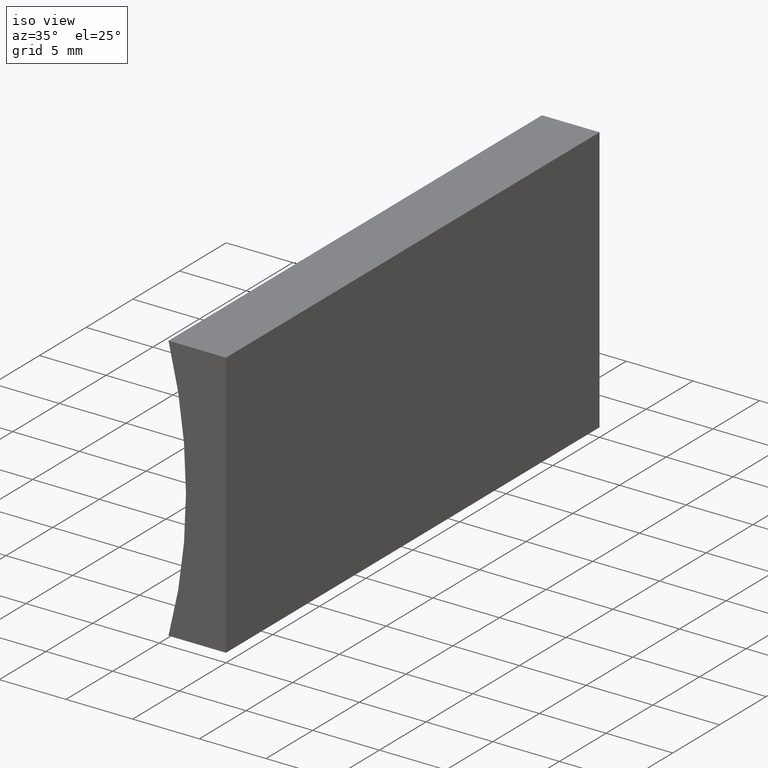
[diagram: clean part render]
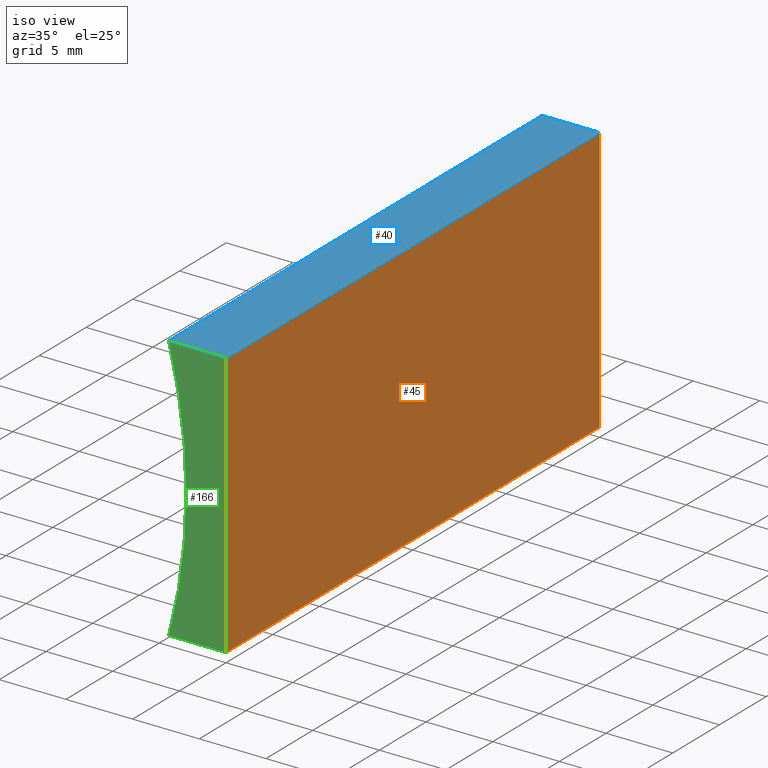
[diagram: same view with three faces highlighted in distinct colors, each labeled with its STEP entity id]
A machine part, iso view with three faces highlighted in distinct colors.
Their STEP definitions:

[orange] entity #45 — the highlighted planar face has unit normal (-1, 0, 0).
#4 = DIRECTION ( 'NONE',  ( -6.123233995736766000E-017, -0.0000000000000000000, -1.000000000000000000 ) ) ;
#18 = AXIS2_PLACEMENT_3D ( 'NONE', #21, #108, #192 ) ;
#21 = CARTESIAN_POINT ( 'NONE',  ( 0.0000000000000000000, 40.00000000000000000, 0.0000000000000000000 ) ) ;
#26 = CARTESIAN_POINT ( 'NONE',  ( 0.0000000000000000000, 40.00000000000000000, 0.0000000000000000000 ) ) ;
#27 = EDGE_CURVE ( 'NONE', #79, #50, #181, .T. ) ;
#31 = VERTEX_POINT ( 'NONE', #26 ) ;
#35 = PLANE ( 'NONE',  #18 ) ;
#41 = ORIENTED_EDGE ( 'NONE', *, *, #78, .T. ) ;
#45 = ADVANCED_FACE ( 'NONE', ( #146 ), #35, .F. ) ;
#50 = VERTEX_POINT ( 'NONE', #176 ) ;
#55 = EDGE_CURVE ( 'NONE', #31, #50, #116, .T. ) ;
#67 = VECTOR ( 'NONE', #193, 1000.000000000000000 ) ;
#71 = VECTOR ( 'NONE', #4, 1000.000000000000000 ) ;
#75 = CARTESIAN_POINT ( 'NONE',  ( 0.0000000000000000000, 40.00000000000000000, 0.0000000000000000000 ) ) ;
#78 = EDGE_CURVE ( 'NONE', #101, #79, #179, .T. ) ;
#79 = VERTEX_POINT ( 'NONE', #136 ) ;
#82 = CARTESIAN_POINT ( 'NONE',  ( 1.224646799147353300E-015, 40.00000000000000000, 20.00000000000000000 ) ) ;
#91 = CARTESIAN_POINT ( 'NONE',  ( 0.0000000000000000000, 0.0000000000000000000, 0.0000000000000000000 ) ) ;
#98 = CARTESIAN_POINT ( 'NONE',  ( 1.224646799147353300E-015, 40.00000000000000000, 20.00000000000000000 ) ) ;
#101 = VERTEX_POINT ( 'NONE', #98 ) ;
#106 = EDGE_LOOP ( 'NONE', ( #133, #187, #113, #41 ) ) ;
#108 = DIRECTION ( 'NONE',  ( -1.000000000000000000, 0.0000000000000000000, 6.123233995736766000E-017 ) ) ;
#113 = ORIENTED_EDGE ( 'NONE', *, *, #194, .F. ) ;
#116 = LINE ( 'NONE', #125, #67 ) ;
#125 = CARTESIAN_POINT ( 'NONE',  ( 0.0000000000000000000, 40.00000000000000000, 0.0000000000000000000 ) ) ;
#126 = LINE ( 'NONE', #75, #134 ) ;
#133 = ORIENTED_EDGE ( 'NONE', *, *, #27, .T. ) ;
#134 = VECTOR ( 'NONE', #174, 1000.000000000000000 ) ;
#136 = CARTESIAN_POINT ( 'NONE',  ( 1.224646799147353300E-015, 0.0000000000000000000, 20.00000000000000000 ) ) ;
#146 = FACE_OUTER_BOUND ( 'NONE', #106, .T. ) ;
#174 = DIRECTION ( 'NONE',  ( -6.123233995736766000E-017, -0.0000000000000000000, -1.000000000000000000 ) ) ;
#176 = CARTESIAN_POINT ( 'NONE',  ( 0.0000000000000000000, 0.0000000000000000000, 0.0000000000000000000 ) ) ;
#179 = LINE ( 'NONE', #82, #204 ) ;
#181 = LINE ( 'NONE', #91, #71 ) ;
#183 = DIRECTION ( 'NONE',  ( -0.0000000000000000000, -1.000000000000000000, -0.0000000000000000000 ) ) ;
#187 = ORIENTED_EDGE ( 'NONE', *, *, #55, .F. ) ;
#192 = DIRECTION ( 'NONE',  ( 6.123233995736766000E-017, 0.0000000000000000000, 1.000000000000000000 ) ) ;
#193 = DIRECTION ( 'NONE',  ( -0.0000000000000000000, -1.000000000000000000, -0.0000000000000000000 ) ) ;
#194 = EDGE_CURVE ( 'NONE', #101, #31, #126, .T. ) ;
#204 = VECTOR ( 'NONE', #183, 1000.000000000000000 ) ;

[blue] entity #40 — the highlighted planar face has unit normal (0, 0, -1).
#17 = EDGE_CURVE ( 'NONE', #115, #79, #168, .T. ) ;
#25 = ORIENTED_EDGE ( 'NONE', *, *, #148, .F. ) ;
#29 = ORIENTED_EDGE ( 'NONE', *, *, #52, .T. ) ;
#32 = VECTOR ( 'NONE', #46, 1000.000000000000000 ) ;
#40 = ADVANCED_FACE ( 'NONE', ( #165 ), #117, .F. ) ;
#46 = DIRECTION ( 'NONE',  ( -0.0000000000000000000, -1.000000000000000000, -0.0000000000000000000 ) ) ;
#52 = EDGE_CURVE ( 'NONE', #137, #115, #198, .T. ) ;
#68 = CARTESIAN_POINT ( 'NONE',  ( -4.311501231034082300, 0.0000000000000000000, 20.00000000000000000 ) ) ;
#69 = VECTOR ( 'NONE', #84, 1000.000000000000000 ) ;
#78 = EDGE_CURVE ( 'NONE', #101, #79, #179, .T. ) ;
#79 = VERTEX_POINT ( 'NONE', #136 ) ;
#80 = CARTESIAN_POINT ( 'NONE',  ( 1.224646799147353300E-015, 40.00000000000000000, 20.00000000000000000 ) ) ;
#82 = CARTESIAN_POINT ( 'NONE',  ( 1.224646799147353300E-015, 40.00000000000000000, 20.00000000000000000 ) ) ;
#84 = DIRECTION ( 'NONE',  ( 1.000000000000000000, -0.0000000000000000000, -0.0000000000000000000 ) ) ;
#95 = DIRECTION ( 'NONE',  ( 0.0000000000000000000, 0.0000000000000000000, -1.000000000000000000 ) ) ;
#98 = CARTESIAN_POINT ( 'NONE',  ( 1.224646799147353300E-015, 40.00000000000000000, 20.00000000000000000 ) ) ;
#99 = DIRECTION ( 'NONE',  ( 1.000000000000000000, -0.0000000000000000000, -0.0000000000000000000 ) ) ;
#100 = CARTESIAN_POINT ( 'NONE',  ( -4.311501231034082300, 40.00000000000000000, 20.00000000000000000 ) ) ;
#101 = VERTEX_POINT ( 'NONE', #98 ) ;
#102 = DIRECTION ( 'NONE',  ( -1.000000000000000000, 0.0000000000000000000, -0.0000000000000000000 ) ) ;
#111 = AXIS2_PLACEMENT_3D ( 'NONE', #161, #95, #102 ) ;
#115 = VERTEX_POINT ( 'NONE', #68 ) ;
#117 = PLANE ( 'NONE',  #111 ) ;
#122 = LINE ( 'NONE', #80, #69 ) ;
#130 = CARTESIAN_POINT ( 'NONE',  ( -4.311501231034082300, 40.00000000000000000, 20.00000000000000000 ) ) ;
#136 = CARTESIAN_POINT ( 'NONE',  ( 1.224646799147353300E-015, 0.0000000000000000000, 20.00000000000000000 ) ) ;
#137 = VERTEX_POINT ( 'NONE', #130 ) ;
#140 = ORIENTED_EDGE ( 'NONE', *, *, #78, .F. ) ;
#148 = EDGE_CURVE ( 'NONE', #137, #101, #122, .T. ) ;
#149 = VECTOR ( 'NONE', #99, 1000.000000000000000 ) ;
#152 = ORIENTED_EDGE ( 'NONE', *, *, #17, .T. ) ;
#155 = CARTESIAN_POINT ( 'NONE',  ( 1.224646799147353300E-015, 0.0000000000000000000, 20.00000000000000000 ) ) ;
#161 = CARTESIAN_POINT ( 'NONE',  ( 1.224646799147353300E-015, 40.00000000000000000, 20.00000000000000000 ) ) ;
#165 = FACE_OUTER_BOUND ( 'NONE', #185, .T. ) ;
#168 = LINE ( 'NONE', #155, #149 ) ;
#179 = LINE ( 'NONE', #82, #204 ) ;
#183 = DIRECTION ( 'NONE',  ( -0.0000000000000000000, -1.000000000000000000, -0.0000000000000000000 ) ) ;
#185 = EDGE_LOOP ( 'NONE', ( #152, #140, #25, #29 ) ) ;
#198 = LINE ( 'NONE', #100, #32 ) ;
#204 = VECTOR ( 'NONE', #183, 1000.000000000000000 ) ;

[green] entity #166 — the highlighted planar face has unit normal (0, 1, 0).
#4 = DIRECTION ( 'NONE',  ( -6.123233995736766000E-017, -0.0000000000000000000, -1.000000000000000000 ) ) ;
#5 = FACE_OUTER_BOUND ( 'NONE', #123, .T. ) ;
#7 = PLANE ( 'NONE',  #172 ) ;
#8 = LINE ( 'NONE', #13, #110 ) ;
#12 = DIRECTION ( 'NONE',  ( -1.000000000000000000, 0.0000000000000000000, 0.0000000000000000000 ) ) ;
#13 = CARTESIAN_POINT ( 'NONE',  ( 0.0000000000000000000, 0.0000000000000000000, 0.0000000000000000000 ) ) ;
#17 = EDGE_CURVE ( 'NONE', #115, #79, #168, .T. ) ;
#19 = ORIENTED_EDGE ( 'NONE', *, *, #17, .F. ) ;
#22 = CARTESIAN_POINT ( 'NONE',  ( -41.78000000000000100, 0.0000000000000000000, 10.00000000000000900 ) ) ;
#23 = DIRECTION ( 'NONE',  ( -0.0000000000000000000, -1.000000000000000000, -0.0000000000000000000 ) ) ;
#27 = EDGE_CURVE ( 'NONE', #79, #50, #181, .T. ) ;
#36 = CARTESIAN_POINT ( 'NONE',  ( -41.78000000000000100, 0.0000000000000000000, 10.00000000000000900 ) ) ;
#38 = DIRECTION ( 'NONE',  ( 0.0000000000000000000, 0.0000000000000000000, 1.000000000000000000 ) ) ;
#44 = ORIENTED_EDGE ( 'NONE', *, *, #27, .F. ) ;
#48 = AXIS2_PLACEMENT_3D ( 'NONE', #36, #23, #38 ) ;
#50 = VERTEX_POINT ( 'NONE', #176 ) ;
#68 = CARTESIAN_POINT ( 'NONE',  ( -4.311501231034082300, 0.0000000000000000000, 20.00000000000000000 ) ) ;
#71 = VECTOR ( 'NONE', #4, 1000.000000000000000 ) ;
#72 = VERTEX_POINT ( 'NONE', #143 ) ;
#79 = VERTEX_POINT ( 'NONE', #136 ) ;
#91 = CARTESIAN_POINT ( 'NONE',  ( 0.0000000000000000000, 0.0000000000000000000, 0.0000000000000000000 ) ) ;
#99 = DIRECTION ( 'NONE',  ( 1.000000000000000000, -0.0000000000000000000, -0.0000000000000000000 ) ) ;
#110 = VECTOR ( 'NONE', #12, 1000.000000000000000 ) ;
#115 = VERTEX_POINT ( 'NONE', #68 ) ;
#123 = EDGE_LOOP ( 'NONE', ( #190, #44, #19, #191 ) ) ;
#124 = EDGE_CURVE ( 'NONE', #72, #115, #171, .T. ) ;
#136 = CARTESIAN_POINT ( 'NONE',  ( 1.224646799147353300E-015, 0.0000000000000000000, 20.00000000000000000 ) ) ;
#141 = EDGE_CURVE ( 'NONE', #50, #72, #8, .T. ) ;
#143 = CARTESIAN_POINT ( 'NONE',  ( -4.311501231034083200, 0.0000000000000000000, -1.734723475976807100E-015 ) ) ;
#149 = VECTOR ( 'NONE', #99, 1000.000000000000000 ) ;
#155 = CARTESIAN_POINT ( 'NONE',  ( 1.224646799147353300E-015, 0.0000000000000000000, 20.00000000000000000 ) ) ;
#166 = ADVANCED_FACE ( 'NONE', ( #5 ), #7, .F. ) ;
#168 = LINE ( 'NONE', #155, #149 ) ;
#171 = CIRCLE ( 'NONE', #48, 38.78000000000000800 ) ;
#172 = AXIS2_PLACEMENT_3D ( 'NONE', #22, #178, #186 ) ;
#176 = CARTESIAN_POINT ( 'NONE',  ( 0.0000000000000000000, 0.0000000000000000000, 0.0000000000000000000 ) ) ;
#178 = DIRECTION ( 'NONE',  ( 0.0000000000000000000, 1.000000000000000000, 0.0000000000000000000 ) ) ;
#181 = LINE ( 'NONE', #91, #71 ) ;
#186 = DIRECTION ( 'NONE',  ( 0.0000000000000000000, -0.0000000000000000000, 1.000000000000000000 ) ) ;
#190 = ORIENTED_EDGE ( 'NONE', *, *, #141, .F. ) ;
#191 = ORIENTED_EDGE ( 'NONE', *, *, #124, .F. ) ;